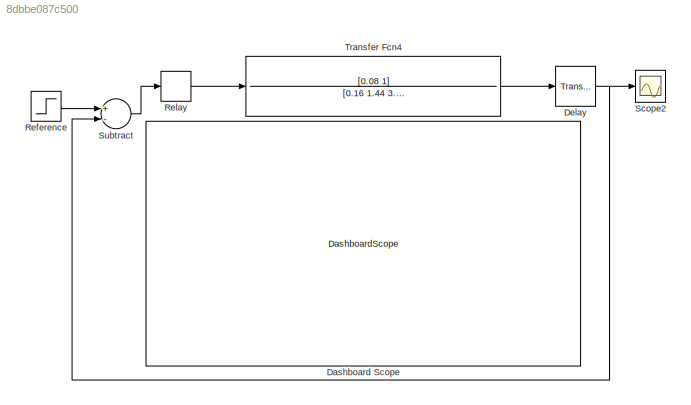
MODEL slx_8dbbe087c500
KIND model
CONFIG AbsTol = auto
CONFIG EnableMultiTasking = off
CONFIG FixedStep = auto
CONFIG MaxStep = auto
CONFIG MinStep = auto
CONFIG RelTol = 1e-3
CONFIG SampleTimeConstraint = Unconstrained
CONFIG Solver = VariableStepAuto
CONFIG SolverName = VariableStepAuto
CONFIG StartTime = 0.0
CONFIG StopTime = 50
BLOCK [DashboardScope] Dashboard Scope
BLOCK [TransportDelay] Delay
  DelayTime = 3
  Ports = [1, 1]
BLOCK [Step] Reference
  After = 0
  SampleTime = 0
BLOCK [Relay] Relay
  OffOutputValue = -0.01
  OnOutputValue = 0.01
BLOCK [Scope] Scope2
  Floating = off
  NumInputPorts = 1
  Ports = [1]
  ScopeSpecificationString = Simulink.scopes.TimeScopeBlockCfg('CurrentConfiguration', extmgr.ConfigurationSet(extmgr.Configuration('Core','General UI',true),extmgr.Configuration('Core','Source UI',true),extmgr.Configuration('Sources','WiredSimulink',true,'DataLoggingVariableName','ScopeData2'),extmgr.Configuration('Visuals','Time Domain',true,'SerializedDisplays',{struct('MinYLimReal','-0.95505','MaxYLimReal','0.95505','YLab...<+1390ch>
BLOCK [Sum] Subtract
  InputSameDT = off
  Inputs = +-
  OutDataTypeStr = Inherit: Inherit via internal rule
  Ports = [2, 1]
  SaturateOnIntegerOverflow = off
BLOCK [TransferFcn] Transfer Fcn4
  Denominator = [0.16 1.44 3.88 3.6 1]
  Numerator = [0.08 1]
NET Delay:1 -> Scope2:1, Subtract:2
LINE Reference:1 -> Subtract:1
LINE Relay:1 -> Transfer Fcn4:1
LINE Subtract:1 -> Relay:1
LINE Transfer Fcn4:1 -> Delay:1
note: NET lines group one-source signal fan-out (src -> all destinations, sorted); 1:1 wires keep LINE
